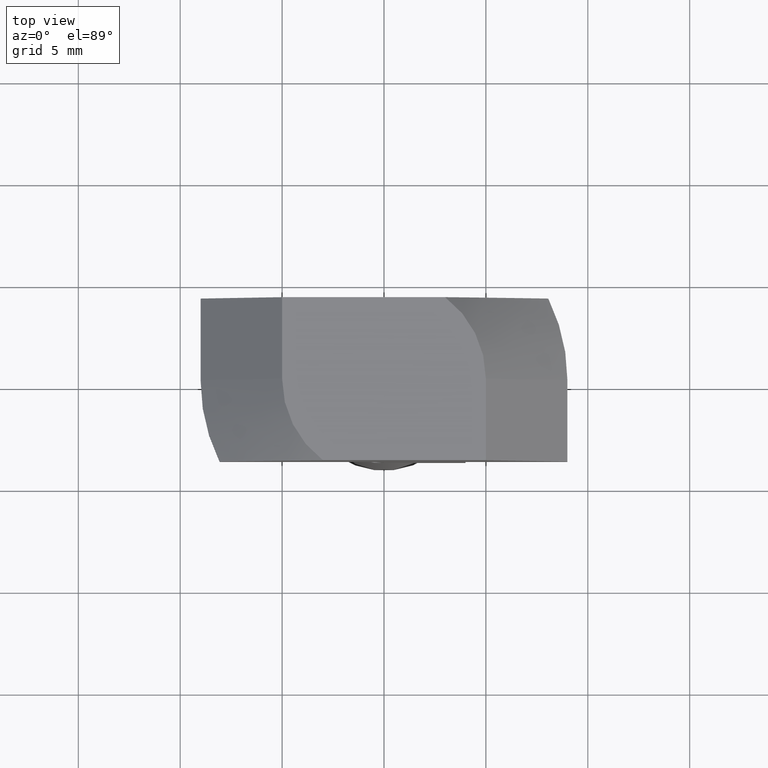
[diagram: clean part render]
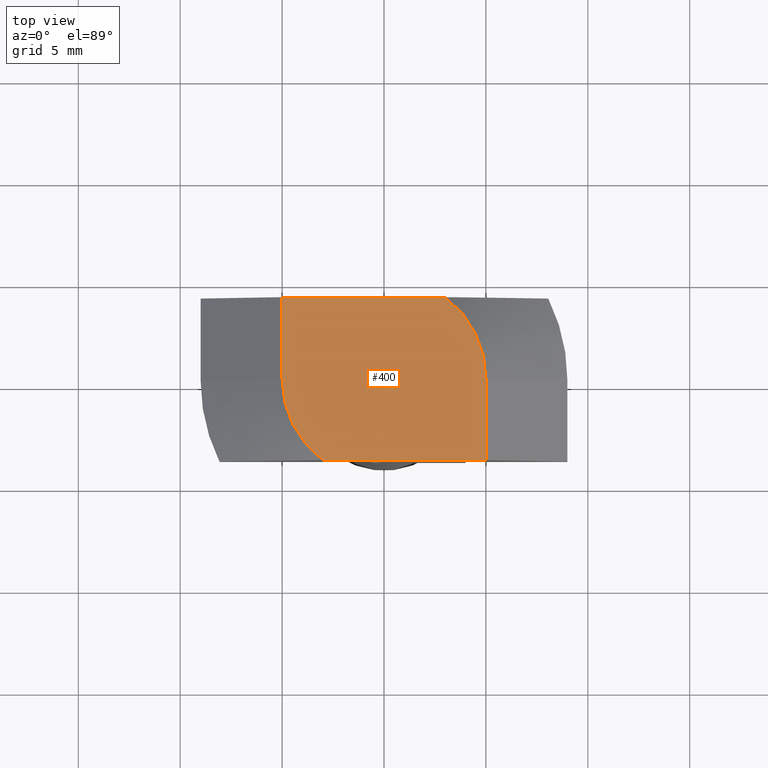
[diagram: same view with one face highlighted and labeled with its STEP entity id]
A machine part, top view. The second image highlights one B-rep face of the part: STEP entity #400.
In plain terms, the highlighted planar face has unit normal (0, 0, 1).
Its self-contained STEP definition (entity closure, byte-faithful):
#29=PLANE('',#461);
#58=FACE_OUTER_BOUND('',#82,.T.);
#82=EDGE_LOOP('',(#359,#360,#361,#362,#363,#364));
#114=LINE('',#682,#152);
#118=LINE('',#690,#156);
#120=LINE('',#693,#158);
#121=LINE('',#695,#159);
#152=VECTOR('',#561,10.);
#156=VECTOR('',#569,10.);
#158=VECTOR('',#573,10.);
#159=VECTOR('',#576,10.);
#171=CIRCLE('',#449,5.);
#174=CIRCLE('',#455,5.);
#198=VERTEX_POINT('',#649);
#200=VERTEX_POINT('',#654);
#204=VERTEX_POINT('',#669);
#205=VERTEX_POINT('',#673);
#207=VERTEX_POINT('',#681);
#209=VERTEX_POINT('',#689);
#244=EDGE_CURVE('',#200,#198,#171,.T.);
#253=EDGE_CURVE('',#205,#204,#174,.T.);
#257=EDGE_CURVE('',#200,#207,#114,.T.);
#261=EDGE_CURVE('',#209,#205,#118,.T.);
#263=EDGE_CURVE('',#207,#204,#120,.T.);
#264=EDGE_CURVE('',#209,#198,#121,.T.);
#359=ORIENTED_EDGE('',*,*,#244,.T.);
#360=ORIENTED_EDGE('',*,*,#264,.F.);
#361=ORIENTED_EDGE('',*,*,#261,.T.);
#362=ORIENTED_EDGE('',*,*,#253,.T.);
#363=ORIENTED_EDGE('',*,*,#263,.F.);
#364=ORIENTED_EDGE('',*,*,#257,.F.);
#400=ADVANCED_FACE('',(#58),#29,.T.);
#449=AXIS2_PLACEMENT_3D('',#655,#535,#536);
#455=AXIS2_PLACEMENT_3D('',#674,#552,#553);
#461=AXIS2_PLACEMENT_3D('',#694,#574,#575);
#535=DIRECTION('center_axis',(2.04289535270664E-17,0.,1.));
#536=DIRECTION('ref_axis',(1.,0.,0.));
#552=DIRECTION('center_axis',(2.04289535270664E-17,0.,1.));
#553=DIRECTION('ref_axis',(-1.,0.,0.));
#561=DIRECTION('',(0.,-1.,0.));
#569=DIRECTION('',(0.,-1.,0.));
#573=DIRECTION('',(-1.,0.,2.04289535270664E-17));
#574=DIRECTION('center_axis',(2.04289535270664E-17,0.,1.));
#575=DIRECTION('ref_axis',(1.,0.,-2.04289535270664E-17));
#576=DIRECTION('',(1.,0.,-2.04289535270664E-17));
#649=CARTESIAN_POINT('',(3.,4.,0.));
#654=CARTESIAN_POINT('',(5.,0.,0.));
#655=CARTESIAN_POINT('Origin',(0.,0.,2.77555756156289E-16));
#669=CARTESIAN_POINT('',(-3.,-4.,3.92523114670944E-16));
#673=CARTESIAN_POINT('',(-5.,0.,0.));
#674=CARTESIAN_POINT('Origin',(0.,0.,2.77555756156289E-16));
#681=CARTESIAN_POINT('',(5.,-4.,0.));
#682=CARTESIAN_POINT('',(5.,0.,1.96261524244674E-16));
#689=CARTESIAN_POINT('',(-5.,4.,0.));
#690=CARTESIAN_POINT('',(-5.,0.,4.00551059515339E-16));
#693=CARTESIAN_POINT('',(5.,-4.,1.96261524244674E-16));
#694=CARTESIAN_POINT('Origin',(-5.,0.,4.00551059515339E-16));
#695=CARTESIAN_POINT('',(5.,4.,1.96261524244674E-16));